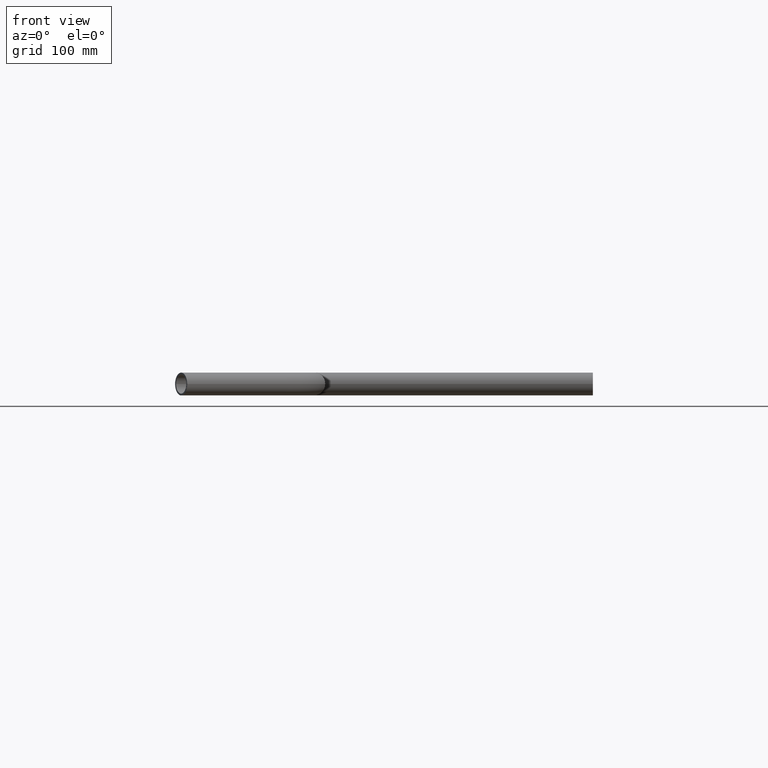
[diagram: clean part render]
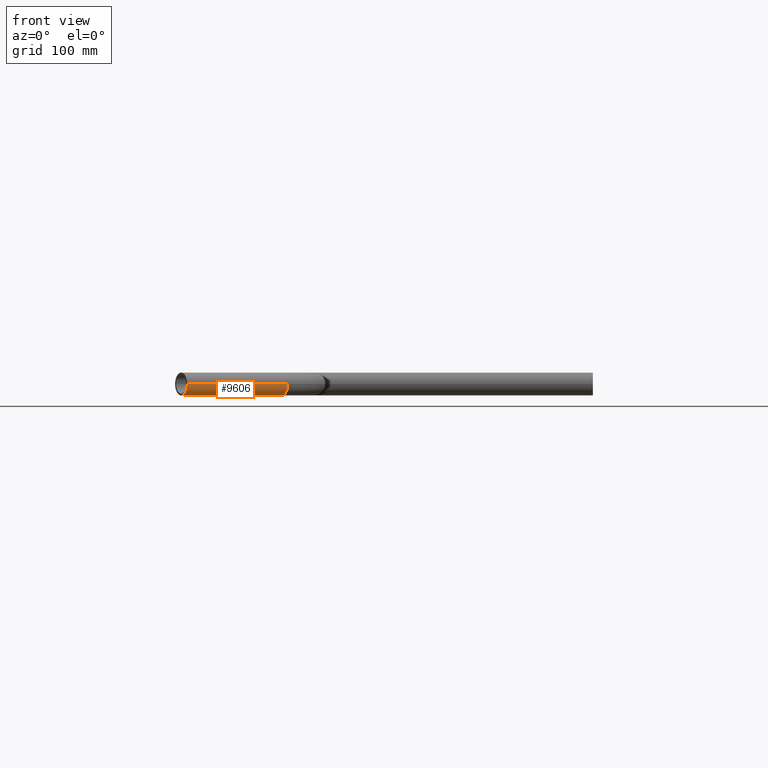
[diagram: same view with one face highlighted and labeled with its STEP entity id]
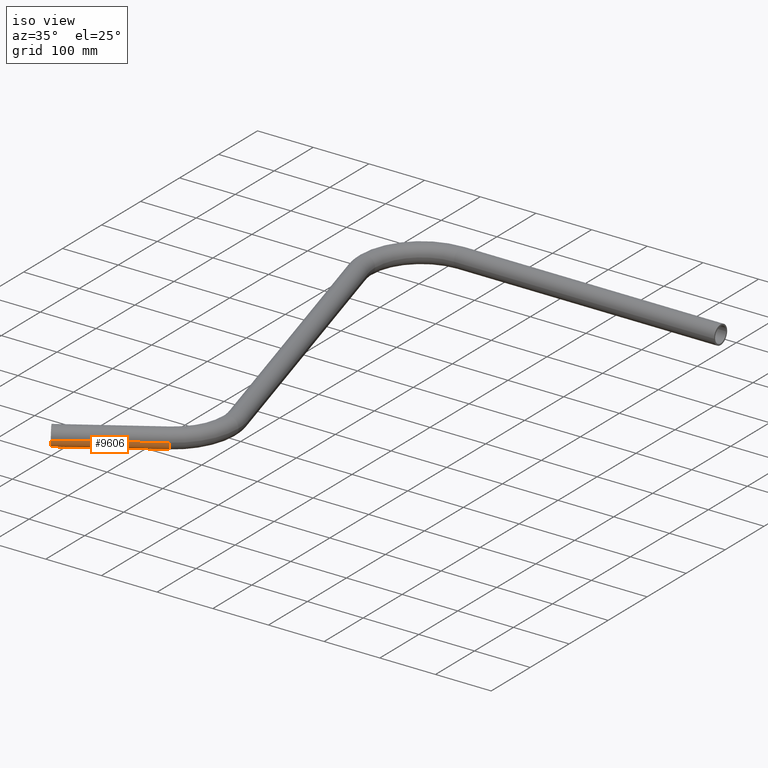
[diagram: same view with one face highlighted and labeled with its STEP entity id]
A machine part, front view. The second image highlights one B-rep face of the part: STEP entity #9606.
A second angle (iso view) of the same face is appended — the face is thin or edge-on in the first view.
In plain terms, the highlighted cylindrical surface (edge-blend (fillet) strip) has radius 16.85 mm, axis along (-0.848, -0.5299, -0).
Its self-contained STEP definition (entity closure, byte-faithful):
#428 = LINE ( 'NONE', #5205, #4884 ) ;
#2069 = VERTEX_POINT ( 'NONE', #7522 ) ;
#2073 = VERTEX_POINT ( 'NONE', #5711 ) ;
#2441 = DIRECTION ( 'NONE',  ( -0.8480480961563795500, -0.5299192642332791700, -0.0000000000000000000 ) ) ;
#2660 = AXIS2_PLACEMENT_3D ( 'NONE', #10375, #4812, #11327 ) ;
#3743 = AXIS2_PLACEMENT_3D ( 'NONE', #3750, #10262, #4689 ) ;
#3750 = CARTESIAN_POINT ( 'NONE',  ( 148.1070162850267600, 92.54753527926689600, 0.0000000000000000000 ) ) ;
#3784 = CARTESIAN_POINT ( 'NONE',  ( 139.1778766826961700, 106.8371456995019900, 2.063529856563290200E-015 ) ) ;
#4036 = FACE_OUTER_BOUND ( 'NONE', #6366, .T. ) ;
#4240 = CARTESIAN_POINT ( 'NONE',  ( -8.929139602330826300, 14.28961042023493800, 2.063529856563290200E-015 ) ) ;
#4443 = LINE ( 'NONE', #6959, #4723 ) ;
#4689 = DIRECTION ( 'NONE',  ( 0.5299192642332701800, -0.8480480961563851000, 0.0000000000000000000 ) ) ;
#4723 = VECTOR ( 'NONE', #7750, 999.9999999999998900 ) ;
#4812 = DIRECTION ( 'NONE',  ( 0.8480480961563778800, 0.5299192642332820600, -3.826221258505972300E-017 ) ) ;
#4884 = VECTOR ( 'NONE', #9888, 999.9999999999998900 ) ;
#4916 = CIRCLE ( 'NONE', #2660, 16.85000000000000100 ) ;
#4921 = EDGE_CURVE ( 'NONE', #11482, #9779, #428, .T. ) ;
#5205 = CARTESIAN_POINT ( 'NONE',  ( 139.1778766826959100, 106.8371456995018500, 2.063529856563290200E-015 ) ) ;
#5711 = CARTESIAN_POINT ( 'NONE',  ( 157.0361558873573500, 78.25792485903181700, 0.0000000000000000000 ) ) ;
#5916 = CYLINDRICAL_SURFACE ( 'NONE', #8281, 16.84999999999999100 ) ;
#6173 = EDGE_CURVE ( 'NONE', #2073, #11482, #10414, .T. ) ;
#6366 = EDGE_LOOP ( 'NONE', ( #11040, #7561, #8493, #12049 ) ) ;
#6959 = CARTESIAN_POINT ( 'NONE',  ( 157.0361558873573800, 78.25792485903184600, 0.0000000000000000000 ) ) ;
#7104 = CARTESIAN_POINT ( 'NONE',  ( 148.1070162850266500, 92.54753527926683900, 0.0000000000000000000 ) ) ;
#7522 = CARTESIAN_POINT ( 'NONE',  ( 8.929139602330771200, -14.28961042023498100, 0.0000000000000000000 ) ) ;
#7561 = ORIENTED_EDGE ( 'NONE', *, *, #6173, .F. ) ;
#7750 = DIRECTION ( 'NONE',  ( -0.8480480961563796600, -0.5299192642332791700, -0.0000000000000000000 ) ) ;
#7880 = EDGE_CURVE ( 'NONE', #2073, #2069, #4443, .T. ) ;
#8281 = AXIS2_PLACEMENT_3D ( 'NONE', #7104, #2441, #8950 ) ;
#8493 = ORIENTED_EDGE ( 'NONE', *, *, #7880, .T. ) ;
#8950 = DIRECTION ( 'NONE',  ( 0.5299192642332788400, -0.8480480961563798800, 0.0000000000000000000 ) ) ;
#9390 = EDGE_CURVE ( 'NONE', #2069, #9779, #4916, .T. ) ;
#9606 = ADVANCED_FACE ( 'NONE', ( #4036 ), #5916, .T. ) ;
#9779 = VERTEX_POINT ( 'NONE', #4240 ) ;
#9888 = DIRECTION ( 'NONE',  ( -0.8480480961563796600, -0.5299192642332791700, -0.0000000000000000000 ) ) ;
#10262 = DIRECTION ( 'NONE',  ( 0.8480480961563852100, 0.5299192642332701800, -0.0000000000000000000 ) ) ;
#10375 = CARTESIAN_POINT ( 'NONE',  ( -2.775557561562891400E-014, -1.387778780781445700E-014, 0.0000000000000000000 ) ) ;
#10414 = CIRCLE ( 'NONE', #3743, 16.85000000000000100 ) ;
#11040 = ORIENTED_EDGE ( 'NONE', *, *, #4921, .F. ) ;
#11327 = DIRECTION ( 'NONE',  ( -0.5299192642332820600, 0.8480480961563778800, 0.0000000000000000000 ) ) ;
#11482 = VERTEX_POINT ( 'NONE', #3784 ) ;
#12049 = ORIENTED_EDGE ( 'NONE', *, *, #9390, .T. ) ;